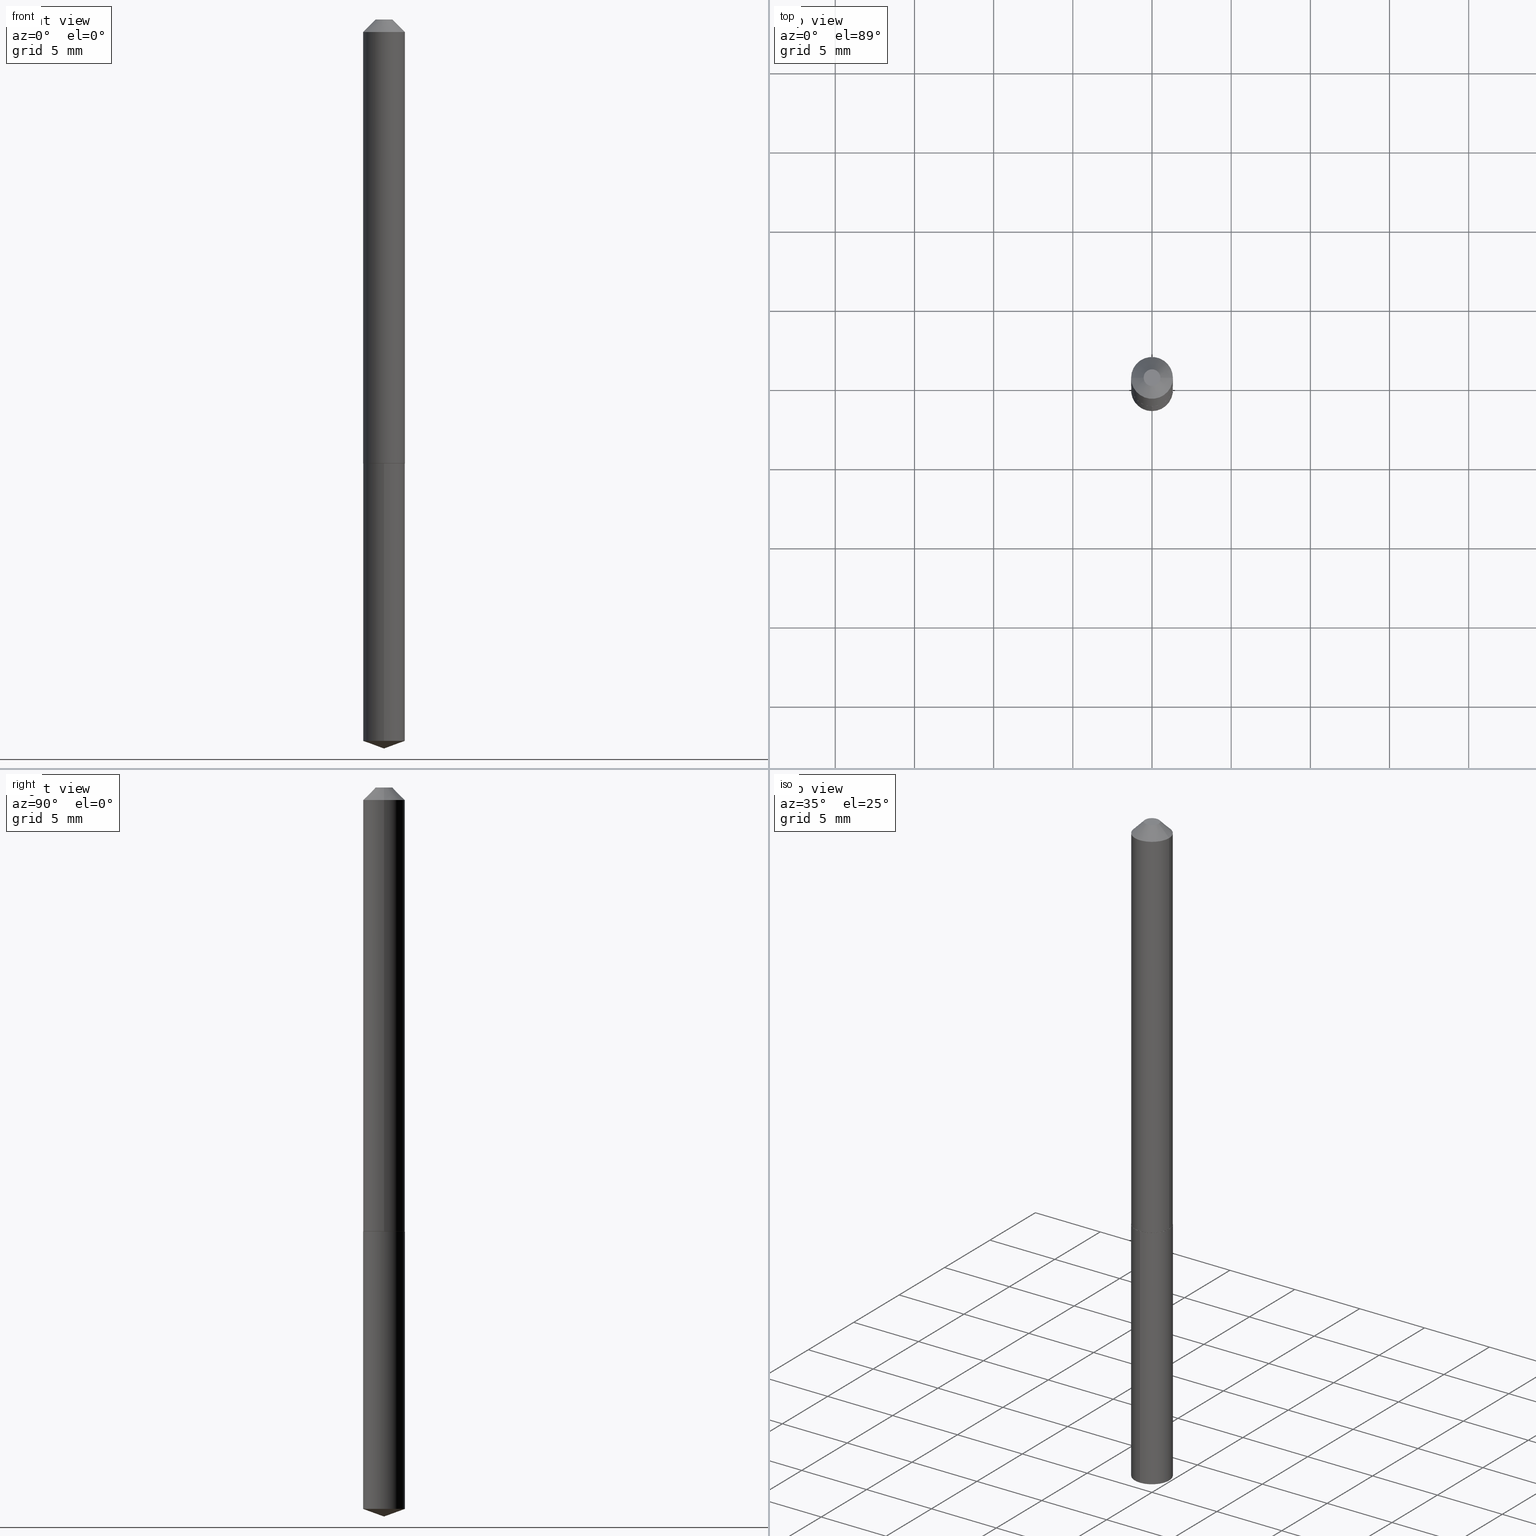
[diagram: canonical four-view strip — front | top / right | iso, engineering-drawing reading convention]
A machine part, canonical four-view strip (front | top / right | iso — engineering-drawing reading convention). The complete STEP part file that produces these views, byte-faithful:
ISO-10303-21;
HEADER;
FILE_DESCRIPTION (( 'STEP AP203' ),
    '1' );
FILE_NAME ('56037.STEP',
    '2024-04-22T19:56:04',
    ( '' ),
    ( '' ),
    'SwSTEP 2.0',
    'SolidWorks 2023',
    '' );
FILE_SCHEMA (( 'CONFIG_CONTROL_DESIGN' ));
ENDSEC;

DATA;
#1 = DIRECTION ( 'NONE',  ( -2.445468806185136597E-29, 3.491481338843145583E-15, 1.000000000000000000 ) ) ;
#2 = PERSON_AND_ORGANIZATION_ROLE ( 'design_supplier' ) ;
#3 = FACE_OUTER_BOUND ( 'NONE', #138, .T. ) ;
#4 = EDGE_CURVE ( 'NONE', #233, #365, #137, .T. ) ;
#5 = PERSON ( 'UNSPECIFIED', 'UNSPECIFIED', 'UNSPECIFIED', ('UNSPECIFIED'), ('UNSPECIFIED'), ('UNSPECIFIED') ) ;
#6 = VECTOR ( 'NONE', #167, 39.37007874015748143 ) ;
#7 = DIRECTION ( 'NONE',  ( -2.445468103057347126E-29, 3.491482345762159600E-15, 1.000000000000000000 ) ) ;
#8 = CC_DESIGN_PERSON_AND_ORGANIZATION_ASSIGNMENT ( #188, #31, ( #95 ) ) ;
#9 = DIRECTION ( 'NONE',  ( -6.982962677686266711E-15, -1.000000000000000000, 2.626776916984868919E-15 ) ) ;
#10 = ORIENTED_EDGE ( 'NONE', *, *, #355, .F. ) ;
#11 = CARTESIAN_POINT ( 'NONE',  ( -0.05150000000000005268, -3.486016661992269797E-15, -1.104000000000000092 ) ) ;
#12 = EDGE_LOOP ( 'NONE', ( #175, #101, #260, #310 ) ) ;
#13 = CARTESIAN_POINT ( 'NONE',  ( 2.699797562028391099E-29, -3.854595398082832919E-15, -1.104000000000000092 ) ) ;
#14 = VERTEX_POINT ( 'NONE', #379 ) ;
#15 = CARTESIAN_POINT ( 'NONE',  ( 7.642090019328603538E-31, -1.091087918388490390E-16, -0.03125000000000021511 ) ) ;
#16 = ORIENTED_EDGE ( 'NONE', *, *, #289, .T. ) ;
#17 = APPROVAL_STATUS ( 'not_yet_approved' ) ;
#18 = ORIENTED_EDGE ( 'NONE', *, *, #183, .T. ) ;
#19 =( LENGTH_UNIT ( ) NAMED_UNIT ( * ) SI_UNIT ( $, .METRE. ) );
#20 = AXIS2_PLACEMENT_3D ( 'NONE', #194, #339, #9 ) ;
#21 = DIRECTION ( 'NONE',  ( 1.000000000000000000, -6.982962677686269077E-15, 0.000000000000000000 ) ) ;
#22 = COORDINATED_UNIVERSAL_TIME_OFFSET ( 5, 0, .BEHIND. ) ;
#23 = APPROVAL_DATE_TIME ( #207, #247 ) ;
#24 = CARTESIAN_POINT ( 'NONE',  ( 0.000000000000000000, 0.000000000000000000, 0.000000000000000000 ) ) ;
#25 = EDGE_CURVE ( 'NONE', #111, #146, #186, .T. ) ;
#26 = AXIS2_PLACEMENT_3D ( 'NONE', #325, #238, #324 ) ;
#27 = DIRECTION ( 'NONE',  ( -0.7071067811865452413, 2.468850131082233000E-15, -0.7071067811865497932 ) ) ;
#28 = APPROVAL_STATUS ( 'not_yet_approved' ) ;
#29 = CARTESIAN_POINT ( 'NONE',  ( 4.386127677929786154E-29, -6.262229266394509783E-15, -1.793573547818158032 ) ) ;
#30 = CC_DESIGN_PERSON_AND_ORGANIZATION_ASSIGNMENT ( #92, #2, ( #95 ) ) ;
#31 = PERSON_AND_ORGANIZATION_ROLE ( 'creator' ) ;
#32 = DIRECTION ( 'NONE',  ( 2.438088387897960049E-29, -3.491481338843145188E-15, -1.000000000000000000 ) ) ;
#33 = EDGE_CURVE ( 'NONE', #372, #370, #158, .T. ) ;
#34 = FACE_OUTER_BOUND ( 'NONE', #180, .T. ) ;
#35 = DIRECTION ( 'NONE',  ( -2.445468103057347126E-29, 3.491482345762159600E-15, 1.000000000000000000 ) ) ;
#36 = ORIENTED_EDGE ( 'NONE', *, *, #83, .T. ) ;
#37 = AXIS2_PLACEMENT_3D ( 'NONE', #215, #32, #217 ) ;
#38 = PERSON_AND_ORGANIZATION_ROLE ( 'classification_officer' ) ;
#39 = DIRECTION ( 'NONE',  ( -2.445468806185136597E-29, 3.491481338843145583E-15, 1.000000000000000000 ) ) ;
#40 = ORIENTED_EDGE ( 'NONE', *, *, #85, .T. ) ;
#41 = APPLICATION_CONTEXT ( 'configuration controlled 3d designs of mechanical parts and assemblies' ) ;
#42 = DIRECTION ( 'NONE',  ( 1.000000000000000000, -6.982962677686266711E-15, 0.000000000000000000 ) ) ;
#43 = ORIENTED_EDGE ( 'NONE', *, *, #109, .F. ) ;
#44 = ADVANCED_FACE ( 'NONE', ( #265 ), #269, .T. ) ;
#45 = CARTESIAN_POINT ( 'NONE',  ( 3.743544432386673062E-48, -5.344789307371237567E-34, -1.530808498934197508E-19 ) ) ;
#46 = ORIENTED_EDGE ( 'NONE', *, *, #109, .T. ) ;
#47 = LOCAL_TIME ( 15, 56, 4.000000000000000000, #271 ) ;
#48 = DIRECTION ( 'NONE',  ( -2.438088387897960049E-29, 3.491481338843145188E-15, 1.000000000000000000 ) ) ;
#49 = ORIENTED_EDGE ( 'NONE', *, *, #33, .T. ) ;
#50 = ORIENTED_EDGE ( 'NONE', *, *, #25, .T. ) ;
#51 = VECTOR ( 'NONE', #206, 39.37007874015748143 ) ;
#52 = FACE_OUTER_BOUND ( 'NONE', #331, .T. ) ;
#53 = CIRCLE ( 'NONE', #374, 0.02074999999999999414 ) ;
#54 = AXIS2_PLACEMENT_3D ( 'NONE', #288, #371, #42 ) ;
#55 =( CONVERSION_BASED_UNIT ( 'INCH', #377 ) LENGTH_UNIT ( ) NAMED_UNIT ( #229 ) );
#56 = EDGE_CURVE ( 'NONE', #348, #370, #273, .T. ) ;
#57 =( NAMED_UNIT ( * ) SI_UNIT ( $, .STERADIAN. ) SOLID_ANGLE_UNIT ( ) );
#58 = AXIS2_PLACEMENT_3D ( 'NONE', #200, #72, #68 ) ;
#59 = UNCERTAINTY_MEASURE_WITH_UNIT (LENGTH_MEASURE( 1.000000000000000082E-05 ), #55, 'distance_accuracy_value', 'NONE');
#60 = VERTEX_POINT ( 'NONE', #343 ) ;
#61 = CALENDAR_DATE ( 2024, 22, 4 ) ;
#62 = CARTESIAN_POINT ( 'NONE',  ( 2.699797562028391099E-29, -3.854595398082833708E-15, -1.104000000000000092 ) ) ;
#63 = CARTESIAN_POINT ( 'NONE',  ( 4.386127677929786154E-29, -6.262229266394509783E-15, -1.793573547818158032 ) ) ;
#64 = DIRECTION ( 'NONE',  ( -2.445468806185136597E-29, 3.491481338843145583E-15, 1.000000000000000000 ) ) ;
#65 = DIRECTION ( 'NONE',  ( 6.676917655467980751E-15, 0.9396926207859114255, 0.3420201433256603307 ) ) ;
#66 = ORIENTED_EDGE ( 'NONE', *, *, #169, .T. ) ;
#67 = CIRCLE ( 'NONE', #294, 0.05200000000000012945 ) ;
#68 = DIRECTION ( 'NONE',  ( 1.000000000000000000, -6.982962677686269077E-15, 0.000000000000000000 ) ) ;
#69 = CARTESIAN_POINT ( 'NONE',  ( 4.432412502911247865E-29, -6.328309528416731475E-15, -1.812500000000000222 ) ) ;
#70 = ORIENTED_EDGE ( 'NONE', *, *, #212, .F. ) ;
#71 = MANIFOLD_SOLID_BREP ( 'Body-Move/Copy2[1]', #366 ) ;
#72 = DIRECTION ( 'NONE',  ( -2.445468806185136597E-29, 3.491481338843145583E-15, 1.000000000000000000 ) ) ;
#73 = ORIENTED_EDGE ( 'NONE', *, *, #341, .F. ) ;
#74 = EDGE_CURVE ( 'NONE', #134, #287, #259, .T. ) ;
#75 = CARTESIAN_POINT ( 'NONE',  ( 0.05200000000000012945, -4.215963716653098357E-15, -1.103500000000000147 ) ) ;
#76 = ORIENTED_EDGE ( 'NONE', *, *, #4, .F. ) ;
#77 = AXIS2_PLACEMENT_3D ( 'NONE', #151, #213, #21 ) ;
#78 = CC_DESIGN_APPROVAL ( #358, ( #95 ) ) ;
#79 = CARTESIAN_POINT ( 'NONE',  ( 3.694822225952789996E-16, 0.05199999999999613265, -1.104000000000000314 ) ) ;
#80 = EDGE_LOOP ( 'NONE', ( #106, #197, #43 ) ) ;
#81 = MANIFOLD_SOLID_BREP ( 'Body-Move/Copy2[2]', #122 ) ;
#82 = APPROVAL_ROLE ( '' ) ;
#83 = EDGE_CURVE ( 'NONE', #365, #233, #94, .T. ) ;
#84 = APPROVAL_STATUS ( 'not_yet_approved' ) ;
#85 = EDGE_CURVE ( 'NONE', #203, #60, #124, .T. ) ;
#86 = DIRECTION ( 'NONE',  ( 1.000000000000000000, -6.982962677686266711E-15, 4.876176775795935793E-29 ) ) ;
#87 = AXIS2_PLACEMENT_3D ( 'NONE', #29, #126, #157 ) ;
#88 = DIRECTION ( 'NONE',  ( 2.445468806185136597E-29, -3.491481338843145583E-15, -1.000000000000000000 ) ) ;
#89 = AXIS2_PLACEMENT_3D ( 'NONE', #306, #88, #276 ) ;
#90 = LOCAL_TIME ( 15, 56, 4.000000000000000000, #363 ) ;
#91 = EDGE_CURVE ( 'NONE', #372, #287, #224, .T. ) ;
#92 = PERSON_AND_ORGANIZATION ( #5, #191 ) ;
#93 = PLANE ( 'NONE',  #37 ) ;
#94 = CIRCLE ( 'NONE', #351, 0.05150000000000005268 ) ;
#95 = PRODUCT_DEFINITION_FORMATION_WITH_SPECIFIED_SOURCE ( 'ANY', '', #386, .NOT_KNOWN. ) ;
#96 = EDGE_CURVE ( 'NONE', #111, #203, #53, .T. ) ;
#97 = FACE_OUTER_BOUND ( 'NONE', #144, .T. ) ;
#98 = EDGE_LOOP ( 'NONE', ( #36, #66, #141, #312 ) ) ;
#99 = SECURITY_CLASSIFICATION_LEVEL ( 'unclassified' ) ;
#100 = CARTESIAN_POINT ( 'NONE',  ( 2.699797562028391099E-29, -3.854595398082833708E-15, -1.104000000000000092 ) ) ;
#101 = ORIENTED_EDGE ( 'NONE', *, *, #382, .T. ) ;
#102 = AXIS2_PLACEMENT_3D ( 'NONE', #165, #364, #142 ) ;
#103 = CIRCLE ( 'NONE', #323, 0.05200000000000000455 ) ;
#104 = CARTESIAN_POINT ( 'NONE',  ( 3.694822225952959601E-16, 0.05199999999999374567, -1.793573547818158254 ) ) ;
#105 = CC_DESIGN_PERSON_AND_ORGANIZATION_ASSIGNMENT ( #380, #349, ( #143 ) ) ;
#106 = ORIENTED_EDGE ( 'NONE', *, *, #74, .F. ) ;
#107 = DIRECTION ( 'NONE',  ( -2.445468806185136877E-29, 3.491481338843145188E-15, 1.000000000000000000 ) ) ;
#108 = ORIENTED_EDGE ( 'NONE', *, *, #83, .F. ) ;
#109 = EDGE_CURVE ( 'NONE', #287, #372, #261, .T. ) ;
#110 = CARTESIAN_POINT ( 'NONE',  ( 3.694822225952959601E-16, 0.05199999999999613265, -1.104000000000000314 ) ) ;
#111 = VERTEX_POINT ( 'NONE', #161 ) ;
#112 = VECTOR ( 'NONE', #244, 39.37007874015748143 ) ;
#113 = CALENDAR_DATE ( 2024, 22, 4 ) ;
#114 = ORIENTED_EDGE ( 'NONE', *, *, #56, .F. ) ;
#115 = DIRECTION ( 'NONE',  ( 1.000000000000000000, -6.982962677686266711E-15, 0.000000000000000000 ) ) ;
#116 = DIRECTION ( 'NONE',  ( -2.445468103057347126E-29, 3.491482345762159600E-15, 1.000000000000000000 ) ) ;
#117 = ADVANCED_FACE ( 'NONE', ( #3 ), #347, .T. ) ;
#118 = CALENDAR_DATE ( 2024, 22, 4 ) ;
#119 = DATE_TIME_ROLE ( 'creation_date' ) ;
#120 = DATE_AND_TIME ( #118, #162 ) ;
#121 = CARTESIAN_POINT ( 'NONE',  ( -3.631140592396587893E-16, -0.05200000000000384870, -1.104000000000000092 ) ) ;
#122 = CLOSED_SHELL ( 'NONE', ( #277, #385, #303, #239, #245, #378, #117, #163 ) ) ;
#123 = CARTESIAN_POINT ( 'NONE',  ( 3.743544432386673062E-48, -5.344789307371237567E-34, -1.530808498934197508E-19 ) ) ;
#124 = LINE ( 'NONE', #304, #112 ) ;
#125 = CARTESIAN_POINT ( 'NONE',  ( 2.699797562028391099E-29, -3.854595398082833708E-15, -1.104000000000000092 ) ) ;
#126 = DIRECTION ( 'NONE',  ( -2.445468103057347126E-29, 3.491482345762159600E-15, 1.000000000000000000 ) ) ;
#127 = EDGE_CURVE ( 'NONE', #134, #372, #243, .T. ) ;
#128 = LINE ( 'NONE', #359, #387 ) ;
#129 = AXIS2_PLACEMENT_3D ( 'NONE', #125, #35, #140 ) ;
#130 = AXIS2_PLACEMENT_3D ( 'NONE', #45, #361, #193 ) ;
#131 = DIRECTION ( 'NONE',  ( -6.982962677686267499E-15, -1.000000000000000000, 3.475157955500671305E-15 ) ) ;
#132 = CYLINDRICAL_SURFACE ( 'NONE', #237, 0.05199999999999999067 ) ;
#133 = CARTESIAN_POINT ( 'NONE',  ( 2.699797562028391099E-29, -3.854595398082832919E-15, -1.104000000000000092 ) ) ;
#134 = VERTEX_POINT ( 'NONE', #334 ) ;
#135 = APPROVAL ( #28, 'UNSPECIFIED' ) ;
#136 = LINE ( 'NONE', #285, #356 ) ;
#137 = CIRCLE ( 'NONE', #77, 0.05150000000000005268 ) ;
#138 = EDGE_LOOP ( 'NONE', ( #340, #290, #50, #280 ) ) ;
#139 = LINE ( 'NONE', #256, #275 ) ;
#140 = DIRECTION ( 'NONE',  ( -6.982962677686266711E-15, -1.000000000000000000, 2.626776916984868919E-15 ) ) ;
#141 = ORIENTED_EDGE ( 'NONE', *, *, #289, .F. ) ;
#142 = DIRECTION ( 'NONE',  ( -1.000000000000000000, 6.982962677686266711E-15, 0.000000000000000000 ) ) ;
#143 = PRODUCT_DEFINITION ( 'UNKNOWN', '', #95, #218 ) ;
#144 = EDGE_LOOP ( 'NONE', ( #344, #231, #250, #228 ) ) ;
#145 = PERSON_AND_ORGANIZATION ( #5, #191 ) ;
#146 = VERTEX_POINT ( 'NONE', #389 ) ;
#147 = APPROVAL_PERSON_ORGANIZATION ( #295, #135, #268 ) ;
#148 = APPLICATION_CONTEXT ( 'configuration controlled 3d designs of mechanical parts and assemblies' ) ;
#149 = DIRECTION ( 'NONE',  ( 1.000000000000000000, 0.000000000000000000, 0.000000000000000000 ) ) ;
#150 = APPLICATION_PROTOCOL_DEFINITION ( 'international standard', 'config_control_design', 1994, #41 ) ;
#151 = CARTESIAN_POINT ( 'NONE',  ( 2.699797562028391099E-29, -3.854595398082832919E-15, -1.104000000000000092 ) ) ;
#152 = PERSON_AND_ORGANIZATION ( #5, #191 ) ;
#153 = CC_DESIGN_APPROVAL ( #247, ( #143 ) ) ;
#154 = CC_DESIGN_APPROVAL ( #135, ( #383 ) ) ;
#155 = CALENDAR_DATE ( 2024, 22, 4 ) ;
#156 = COORDINATED_UNIVERSAL_TIME_OFFSET ( 5, 0, .BEHIND. ) ;
#157 = DIRECTION ( 'NONE',  ( -6.982962677686266711E-15, -1.000000000000000000, 5.253553833969737838E-15 ) ) ;
#158 = LINE ( 'NONE', #121, #51 ) ;
#159 = DIRECTION ( 'NONE',  ( -6.982962677686266711E-15, -1.000000000000000000, 5.253553833969737838E-15 ) ) ;
#160 = VECTOR ( 'NONE', #321, 39.37007874015748143 ) ;
#161 = CARTESIAN_POINT ( 'NONE',  ( -0.02074999999999999414, 1.994508714814133894E-16, -1.530808498946235774E-19 ) ) ;
#162 = LOCAL_TIME ( 15, 56, 4.000000000000000000, #22 ) ;
#163 = ADVANCED_FACE ( 'NONE', ( #357 ), #93, .F. ) ;
#164 = CARTESIAN_POINT ( 'NONE',  ( 4.432410936791441595E-29, -6.328311751693914866E-15, -1.812500000000000222 ) ) ;
#165 = CARTESIAN_POINT ( 'NONE',  ( 7.642090019328603538E-31, -1.091087918388490390E-16, -0.03125000000000021511 ) ) ;
#166 = AXIS2_PLACEMENT_3D ( 'NONE', #63, #330, #159 ) ;
#167 = DIRECTION ( 'NONE',  ( 0.7071067811866742492, -2.468850131083584319E-15, 0.7071067811864207853 ) ) ;
#168 = EDGE_LOOP ( 'NONE', ( #205, #201 ) ) ;
#169 = EDGE_CURVE ( 'NONE', #233, #14, #128, .T. ) ;
#170 = CARTESIAN_POINT ( 'NONE',  ( 2.698574827625298297E-29, -3.852849657413411415E-15, -1.103500000000000147 ) ) ;
#171 = ORIENTED_EDGE ( 'NONE', *, *, #352, .F. ) ;
#172 = EDGE_CURVE ( 'NONE', #370, #348, #328, .T. ) ;
#173 = CARTESIAN_POINT ( 'NONE',  ( 2.699797562028391099E-29, -3.854595398082833708E-15, -1.104000000000000092 ) ) ;
#174 = AXIS2_PLACEMENT_3D ( 'NONE', #181, #116, #329 ) ;
#175 = ORIENTED_EDGE ( 'NONE', *, *, #91, .T. ) ;
#176 = APPROVAL_PERSON_ORGANIZATION ( #145, #247, #373 ) ;
#177 = LINE ( 'NONE', #75, #6 ) ;
#178 = CC_DESIGN_PERSON_AND_ORGANIZATION_ASSIGNMENT ( #152, #236, ( #386 ) ) ;
#179 = EDGE_LOOP ( 'NONE', ( #70, #18, #257, #73 ) ) ;
#180 = EDGE_LOOP ( 'NONE', ( #284, #40, #255, #368 ) ) ;
#181 = CARTESIAN_POINT ( 'NONE',  ( -9.184586006086678132E-28, 1.311316242324706476E-13, 37.55757874015748143 ) ) ;
#182 =( NAMED_UNIT ( * ) PLANE_ANGLE_UNIT ( ) SI_UNIT ( $, .RADIAN. ) );
#183 = EDGE_CURVE ( 'NONE', #14, #319, #263, .T. ) ;
#184 = CYLINDRICAL_SURFACE ( 'NONE', #26, 0.05200000000000006700 ) ;
#185 = APPLICATION_PROTOCOL_DEFINITION ( 'international standard', 'config_control_design', 1994, #148 ) ;
#186 = LINE ( 'NONE', #327, #298 ) ;
#187 = CC_DESIGN_DATE_AND_TIME_ASSIGNMENT ( #384, #119, ( #143 ) ) ;
#188 = PERSON_AND_ORGANIZATION ( #5, #191 ) ;
#189 = ORIENTED_EDGE ( 'NONE', *, *, #127, .F. ) ;
#190 = EDGE_CURVE ( 'NONE', #203, #111, #375, .T. ) ;
#191 = ORGANIZATION ( 'UNSPECIFIED', 'UNSPECIFIED', '' ) ;
#192 = DIRECTION ( 'NONE',  ( -2.445468103057347126E-29, 3.491482345762159600E-15, 1.000000000000000000 ) ) ;
#193 = DIRECTION ( 'NONE',  ( 1.000000000000000000, -6.982962677686265922E-15, 4.876174938203531473E-29 ) ) ;
#194 = CARTESIAN_POINT ( 'NONE',  ( 2.699797562028391099E-29, -3.854595398082833708E-15, -1.104000000000000092 ) ) ;
#195 = DIRECTION ( 'NONE',  ( 1.000000000000000000, -6.982962677686269077E-15, 0.000000000000000000 ) ) ;
#196 = AXIS2_PLACEMENT_3D ( 'NONE', #62, #192, #219 ) ;
#197 = ORIENTED_EDGE ( 'NONE', *, *, #127, .T. ) ;
#198 = DIRECTION ( 'NONE',  ( 6.982962677686265922E-15, 1.000000000000000000, -3.491482345762159600E-15 ) ) ;
#199 = EDGE_LOOP ( 'NONE', ( #282, #46, #49, #114 ) ) ;
#200 = CARTESIAN_POINT ( 'NONE',  ( 2.698574827625298297E-29, -3.852849657413411415E-15, -1.103500000000000147 ) ) ;
#201 = ORIENTED_EDGE ( 'NONE', *, *, #190, .T. ) ;
#202 = FACE_OUTER_BOUND ( 'NONE', #320, .T. ) ;
#203 = VERTEX_POINT ( 'NONE', #307 ) ;
#204 = AXIS2_PLACEMENT_3D ( 'NONE', #170, #39, #258 ) ;
#205 = ORIENTED_EDGE ( 'NONE', *, *, #96, .T. ) ;
#206 = DIRECTION ( 'NONE',  ( -2.445468103057346845E-29, 3.491482345762159600E-15, 1.000000000000000000 ) ) ;
#207 = DATE_AND_TIME ( #296, #381 ) ;
#208 = CC_DESIGN_DATE_AND_TIME_ASSIGNMENT ( #302, #209, ( #383 ) ) ;
#209 = DATE_TIME_ROLE ( 'classification_date' ) ;
#210 = AXIS2_PLACEMENT_3D ( 'NONE', #266, #293, #86 ) ;
#211 = FACE_OUTER_BOUND ( 'NONE', #179, .T. ) ;
#212 = EDGE_CURVE ( 'NONE', #14, #146, #136, .T. ) ;
#213 = DIRECTION ( 'NONE',  ( -2.445468806185136597E-29, 3.491481338843145583E-15, 1.000000000000000000 ) ) ;
#214 = AXIS2_PLACEMENT_3D ( 'NONE', #173, #316, #198 ) ;
#215 = CARTESIAN_POINT ( 'NONE',  ( 1.871772216193336531E-48, -2.672394653685618784E-34, -7.654042494670987541E-20 ) ) ;
#216 = CONICAL_SURFACE ( 'NONE', #278, 108.1684023407349855, 1.221730476396036158 ) ;
#217 = DIRECTION ( 'NONE',  ( -1.000000000000000000, 6.982962677686265922E-15, -4.876176775795935793E-29 ) ) ;
#218 = DESIGN_CONTEXT ( 'detailed design', #41, 'design' ) ;
#219 = DIRECTION ( 'NONE',  ( -6.982962677686266711E-15, -1.000000000000000000, 2.626776916984868919E-15 ) ) ;
#220 = ADVANCED_FACE ( 'NONE', ( #335 ), #230, .T. ) ;
#221 = DIRECTION ( 'NONE',  ( -2.445468103057347126E-29, 3.491482345762159600E-15, 1.000000000000000000 ) ) ;
#222 = DIRECTION ( 'NONE',  ( -2.445468806185136597E-29, 3.491481338843145583E-15, 1.000000000000000000 ) ) ;
#223 = CARTESIAN_POINT ( 'NONE',  ( 2.698574827625298297E-29, -3.852849657413411415E-15, -1.103500000000000147 ) ) ;
#224 = CIRCLE ( 'NONE', #166, 0.05199999999999999067 ) ;
#225 = AXIS2_PLACEMENT_3D ( 'NONE', #13, #48, #342 ) ;
#226 = ORIENTED_EDGE ( 'NONE', *, *, #74, .T. ) ;
#227 = CARTESIAN_POINT ( 'NONE',  ( 2.698574827625298297E-29, -3.852849657413411415E-15, -1.103500000000000147 ) ) ;
#228 = ORIENTED_EDGE ( 'NONE', *, *, #183, .F. ) ;
#229 = DIMENSIONAL_EXPONENTS ( 1.000000000000000000, 0.000000000000000000, 0.000000000000000000, 0.000000000000000000, 0.000000000000000000, 0.000000000000000000, 0.000000000000000000 ) ;
#230 = CYLINDRICAL_SURFACE ( 'NONE', #20, 0.05199999999999999067 ) ;
#231 = ORIENTED_EDGE ( 'NONE', *, *, #4, .T. ) ;
#232 = DIRECTION ( 'NONE',  ( -2.445468806185136597E-29, 3.491481338843145583E-15, 1.000000000000000000 ) ) ;
#233 = VERTEX_POINT ( 'NONE', #11 ) ;
#234 = CARTESIAN_POINT ( 'NONE',  ( 0.05150000000000005268, -4.214217975983676065E-15, -1.104000000000000092 ) ) ;
#235 = LINE ( 'NONE', #79, #160 ) ;
#236 = PERSON_AND_ORGANIZATION_ROLE ( 'design_owner' ) ;
#237 = AXIS2_PLACEMENT_3D ( 'NONE', #100, #221, #249 ) ;
#238 = DIRECTION ( 'NONE',  ( -2.445468806185136597E-29, 3.491481338843145583E-15, 1.000000000000000000 ) ) ;
#239 = ADVANCED_FACE ( 'NONE', ( #281 ), #309, .F. ) ;
#240 = CARTESIAN_POINT ( 'NONE',  ( -3.631140592396587893E-16, -0.05200000000000384870, -1.104000000000000092 ) ) ;
#241 = APPROVAL_DATE_TIME ( #120, #135 ) ;
#242 = VECTOR ( 'NONE', #301, 39.37007874015748854 ) ;
#243 = LINE ( 'NONE', #164, #242 ) ;
#244 = DIRECTION ( 'NONE',  ( 0.7071067811865452413, -7.319954787623248157E-15, -0.7071067811865497932 ) ) ;
#245 = ADVANCED_FACE ( 'NONE', ( #97 ), #299, .T. ) ;
#246 = PERSON_AND_ORGANIZATION ( #5, #191 ) ;
#247 = APPROVAL ( #84, 'UNSPECIFIED' ) ;
#248 = PLANE ( 'NONE',  #214 ) ;
#249 = DIRECTION ( 'NONE',  ( -6.982962677686266711E-15, -1.000000000000000000, 2.626776916984868919E-15 ) ) ;
#250 = ORIENTED_EDGE ( 'NONE', *, *, #253, .T. ) ;
#251 = ADVANCED_BREP_SHAPE_REPRESENTATION ( '56037', ( #71, #81, #353 ), #286 ) ;
#252 = DIRECTION ( 'NONE',  ( -2.445468806185136597E-29, 3.491481338843145583E-15, 1.000000000000000000 ) ) ;
#253 = EDGE_CURVE ( 'NONE', #365, #319, #177, .T. ) ;
#254 = CONICAL_SURFACE ( 'NONE', #102, 0.05200000000000000455, 0.7853981633974450594 ) ;
#255 = ORIENTED_EDGE ( 'NONE', *, *, #355, .T. ) ;
#256 = CARTESIAN_POINT ( 'NONE',  ( 0.05200000000000006700, -3.631140592396863502E-16, 2.535611923413889961E-30 ) ) ;
#257 = ORIENTED_EDGE ( 'NONE', *, *, #352, .T. ) ;
#258 = DIRECTION ( 'NONE',  ( 1.000000000000000000, -6.982962677686269077E-15, 0.000000000000000000 ) ) ;
#259 = LINE ( 'NONE', #69, #346 ) ;
#260 = ORIENTED_EDGE ( 'NONE', *, *, #172, .F. ) ;
#261 = CIRCLE ( 'NONE', #87, 0.05199999999999999067 ) ;
#262 = ORIENTED_EDGE ( 'NONE', *, *, #56, .T. ) ;
#263 = CIRCLE ( 'NONE', #308, 0.05200000000000012945 ) ;
#264 = MECHANICAL_CONTEXT ( 'NONE', #148, 'mechanical' ) ;
#265 = FACE_OUTER_BOUND ( 'NONE', #362, .T. ) ;
#266 = CARTESIAN_POINT ( 'NONE',  ( 0.000000000000000000, 0.000000000000000000, 0.000000000000000000 ) ) ;
#267 = SHAPE_DEFINITION_REPRESENTATION ( #390, #251 ) ;
#268 = APPROVAL_ROLE ( '' ) ;
#269 = CONICAL_SURFACE ( 'NONE', #174, 108.1684023407349855, 1.221730476396036158 ) ;
#270 = CONICAL_SURFACE ( 'NONE', #58, 0.05200000000000012945, 0.7853981633976275800 ) ;
#271 = COORDINATED_UNIVERSAL_TIME_OFFSET ( 5, 0, .BEHIND. ) ;
#272 = DATE_AND_TIME ( #61, #360 ) ;
#273 = CIRCLE ( 'NONE', #129, 0.05199999999999999067 ) ;
#274 = ADVANCED_FACE ( 'NONE', ( #367 ), #132, .T. ) ;
#275 = VECTOR ( 'NONE', #369, 39.37007874015748143 ) ;
#276 = DIRECTION ( 'NONE',  ( -1.000000000000000000, 6.982962677686266711E-15, 0.000000000000000000 ) ) ;
#277 = ADVANCED_FACE ( 'NONE', ( #34 ), #254, .T. ) ;
#278 = AXIS2_PLACEMENT_3D ( 'NONE', #314, #7, #131 ) ;
#279 = FACE_OUTER_BOUND ( 'NONE', #80, .T. ) ;
#280 = ORIENTED_EDGE ( 'NONE', *, *, #341, .T. ) ;
#281 = FACE_OUTER_BOUND ( 'NONE', #292, .T. ) ;
#282 = ORIENTED_EDGE ( 'NONE', *, *, #382, .F. ) ;
#283 = DIRECTION ( 'NONE',  ( 1.000000000000000000, -6.982962677686269077E-15, 0.000000000000000000 ) ) ;
#284 = ORIENTED_EDGE ( 'NONE', *, *, #190, .F. ) ;
#285 = CARTESIAN_POINT ( 'NONE',  ( -0.05200000000000006700, 3.694822225952525727E-16, -2.557846246932554274E-30 ) ) ;
#286 =( GEOMETRIC_REPRESENTATION_CONTEXT ( 3 ) GLOBAL_UNCERTAINTY_ASSIGNED_CONTEXT ( ( #59 ) ) GLOBAL_UNIT_ASSIGNED_CONTEXT ( ( #55, #182, #57 ) ) REPRESENTATION_CONTEXT ( 'NONE', 'WORKASPACE' ) );
#287 = VERTEX_POINT ( 'NONE', #104 ) ;
#288 = CARTESIAN_POINT ( 'NONE',  ( 7.642090019328603538E-31, -1.091087918388490390E-16, -0.03125000000000021511 ) ) ;
#289 = EDGE_CURVE ( 'NONE', #319, #14, #67, .T. ) ;
#290 = ORIENTED_EDGE ( 'NONE', *, *, #96, .F. ) ;
#291 = PERSON_AND_ORGANIZATION ( #5, #191 ) ;
#292 = EDGE_LOOP ( 'NONE', ( #108, #76 ) ) ;
#293 = DIRECTION ( 'NONE',  ( -2.445468806185136597E-29, 3.491481338843145583E-15, 1.000000000000000000 ) ) ;
#294 = AXIS2_PLACEMENT_3D ( 'NONE', #223, #252, #283 ) ;
#295 = PERSON_AND_ORGANIZATION ( #5, #191 ) ;
#296 = CALENDAR_DATE ( 2024, 22, 4 ) ;
#297 = DIRECTION ( 'NONE',  ( 0.000000000000000000, 0.000000000000000000, 1.000000000000000000 ) ) ;
#298 = VECTOR ( 'NONE', #27, 39.37007874015748143 ) ;
#299 = CONICAL_SURFACE ( 'NONE', #204, 0.05200000000000012945, 0.7853981633976275800 ) ;
#300 = DIRECTION ( 'NONE',  ( 1.000000000000000000, -6.982962677686265922E-15, 4.876174938203531473E-29 ) ) ;
#301 = DIRECTION ( 'NONE',  ( -6.561838499445213473E-15, -0.9396926207859090940, 0.3420201433256668810 ) ) ;
#302 = DATE_AND_TIME ( #155, #90 ) ;
#303 = ADVANCED_FACE ( 'NONE', ( #336 ), #270, .T. ) ;
#304 = CARTESIAN_POINT ( 'NONE',  ( 0.05200000000000000455, -4.658546877229686859E-16, -0.03125000000000021511 ) ) ;
#305 = ADVANCED_FACE ( 'NONE', ( #279 ), #216, .T. ) ;
#306 = CARTESIAN_POINT ( 'NONE',  ( 7.642090019328603538E-31, -1.091087918388490390E-16, -0.03125000000000021511 ) ) ;
#307 = CARTESIAN_POINT ( 'NONE',  ( 0.02074999999999999414, -3.041050105883639549E-16, -1.530808498918505513E-19 ) ) ;
#308 = AXIS2_PLACEMENT_3D ( 'NONE', #227, #64, #345 ) ;
#309 = PLANE ( 'NONE',  #225 ) ;
#310 = ORIENTED_EDGE ( 'NONE', *, *, #33, .F. ) ;
#311 = CARTESIAN_POINT ( 'NONE',  ( 0.05200000000000012945, -4.215963716653098357E-15, -1.103500000000000147 ) ) ;
#312 = ORIENTED_EDGE ( 'NONE', *, *, #253, .F. ) ;
#313 = PRODUCT_RELATED_PRODUCT_CATEGORY ( 'detail', '', ( #386 ) ) ;
#314 = CARTESIAN_POINT ( 'NONE',  ( -9.184586006086678132E-28, 1.311316242324706476E-13, 37.55757874015748143 ) ) ;
#315 = ORIENTED_EDGE ( 'NONE', *, *, #91, .F. ) ;
#316 = DIRECTION ( 'NONE',  ( 2.445468103057346845E-29, -3.491482345762159600E-15, -1.000000000000000000 ) ) ;
#317 = APPROVAL_PERSON_ORGANIZATION ( #291, #358, #82 ) ;
#318 = CC_DESIGN_SECURITY_CLASSIFICATION ( #383, ( #95 ) ) ;
#319 = VERTEX_POINT ( 'NONE', #311 ) ;
#320 = EDGE_LOOP ( 'NONE', ( #376, #262 ) ) ;
#321 = DIRECTION ( 'NONE',  ( -2.445468103057346845E-29, 3.491482345762159600E-15, 1.000000000000000000 ) ) ;
#322 = CARTESIAN_POINT ( 'NONE',  ( -3.631140592396419767E-16, -0.05200000000000627731, -1.793573547818157587 ) ) ;
#323 = AXIS2_PLACEMENT_3D ( 'NONE', #15, #232, #115 ) ;
#324 = DIRECTION ( 'NONE',  ( 1.000000000000000000, -6.982962677686266711E-15, 4.876176775795935793E-29 ) ) ;
#325 = CARTESIAN_POINT ( 'NONE',  ( 0.000000000000000000, 0.000000000000000000, 0.000000000000000000 ) ) ;
#326 = ADVANCED_FACE ( 'NONE', ( #202 ), #248, .F. ) ;
#327 = CARTESIAN_POINT ( 'NONE',  ( -0.05200000000000000455, 2.540052674008368551E-16, -0.03125000000000021511 ) ) ;
#328 = CIRCLE ( 'NONE', #196, 0.05199999999999999067 ) ;
#329 = DIRECTION ( 'NONE',  ( -6.982962677686267499E-15, -1.000000000000000000, 3.475157955500671305E-15 ) ) ;
#330 = DIRECTION ( 'NONE',  ( -2.445468103057347126E-29, 3.491482345762159600E-15, 1.000000000000000000 ) ) ;
#331 = EDGE_LOOP ( 'NONE', ( #16, #338, #10, #171 ) ) ;
#332 = CIRCLE ( 'NONE', #54, 0.05200000000000000455 ) ;
#333 = DIRECTION ( 'NONE',  ( -0.7071067811866742492, 7.493145998870811699E-15, 0.7071067811864207853 ) ) ;
#334 = CARTESIAN_POINT ( 'NONE',  ( 4.432410936791442156E-29, -6.328311751693914866E-15, -1.812500000000000222 ) ) ;
#335 = FACE_OUTER_BOUND ( 'NONE', #12, .T. ) ;
#336 = FACE_OUTER_BOUND ( 'NONE', #98, .T. ) ;
#337 = CC_DESIGN_PERSON_AND_ORGANIZATION_ASSIGNMENT ( #246, #38, ( #383 ) ) ;
#338 = ORIENTED_EDGE ( 'NONE', *, *, #212, .T. ) ;
#339 = DIRECTION ( 'NONE',  ( -2.445468103057347126E-29, 3.491482345762159600E-15, 1.000000000000000000 ) ) ;
#340 = ORIENTED_EDGE ( 'NONE', *, *, #85, .F. ) ;
#341 = EDGE_CURVE ( 'NONE', #146, #60, #332, .T. ) ;
#342 = DIRECTION ( 'NONE',  ( 1.000000000000000000, -6.982962677686265922E-15, 4.876176775795935793E-29 ) ) ;
#343 = CARTESIAN_POINT ( 'NONE',  ( 0.05200000000000000455, -4.722228510785349578E-16, -0.03125000000000021511 ) ) ;
#344 = ORIENTED_EDGE ( 'NONE', *, *, #169, .F. ) ;
#345 = DIRECTION ( 'NONE',  ( 1.000000000000000000, -6.982962677686269077E-15, 0.000000000000000000 ) ) ;
#346 = VECTOR ( 'NONE', #65, 39.37007874015748143 ) ;
#347 = CONICAL_SURFACE ( 'NONE', #89, 0.05200000000000000455, 0.7853981633974450594 ) ;
#348 = VERTEX_POINT ( 'NONE', #110 ) ;
#349 = PERSON_AND_ORGANIZATION_ROLE ( 'creator' ) ;
#350 = COORDINATED_UNIVERSAL_TIME_OFFSET ( 5, 0, .BEHIND. ) ;
#351 = AXIS2_PLACEMENT_3D ( 'NONE', #133, #222, #195 ) ;
#352 = EDGE_CURVE ( 'NONE', #319, #60, #139, .T. ) ;
#353 = AXIS2_PLACEMENT_3D ( 'NONE', #24, #297, #149 ) ;
#354 = CYLINDRICAL_SURFACE ( 'NONE', #210, 0.05200000000000006700 ) ;
#355 = EDGE_CURVE ( 'NONE', #60, #146, #103, .T. ) ;
#356 = VECTOR ( 'NONE', #107, 39.37007874015748143 ) ;
#357 = FACE_OUTER_BOUND ( 'NONE', #168, .T. ) ;
#358 = APPROVAL ( #17, 'UNSPECIFIED' ) ;
#359 = CARTESIAN_POINT ( 'NONE',  ( -0.05200000000000012945, -3.483367434818158202E-15, -1.103500000000000147 ) ) ;
#360 = LOCAL_TIME ( 15, 56, 4.000000000000000000, #156 ) ;
#361 = DIRECTION ( 'NONE',  ( -2.445468806185136597E-29, 3.491481338843145583E-15, 1.000000000000000000 ) ) ;
#362 = EDGE_LOOP ( 'NONE', ( #189, #226, #315 ) ) ;
#363 = COORDINATED_UNIVERSAL_TIME_OFFSET ( 5, 0, .BEHIND. ) ;
#364 = DIRECTION ( 'NONE',  ( 2.445468806185136597E-29, -3.491481338843145583E-15, -1.000000000000000000 ) ) ;
#365 = VERTEX_POINT ( 'NONE', #234 ) ;
#366 = CLOSED_SHELL ( 'NONE', ( #220, #44, #305, #274, #326 ) ) ;
#367 = FACE_OUTER_BOUND ( 'NONE', #199, .T. ) ;
#368 = ORIENTED_EDGE ( 'NONE', *, *, #25, .F. ) ;
#369 = DIRECTION ( 'NONE',  ( -2.445468806185136877E-29, 3.491481338843145188E-15, 1.000000000000000000 ) ) ;
#370 = VERTEX_POINT ( 'NONE', #240 ) ;
#371 = DIRECTION ( 'NONE',  ( -2.445468806185136597E-29, 3.491481338843145583E-15, 1.000000000000000000 ) ) ;
#372 = VERTEX_POINT ( 'NONE', #322 ) ;
#373 = APPROVAL_ROLE ( '' ) ;
#374 = AXIS2_PLACEMENT_3D ( 'NONE', #123, #1, #300 ) ;
#375 = CIRCLE ( 'NONE', #130, 0.02074999999999999414 ) ;
#376 = ORIENTED_EDGE ( 'NONE', *, *, #172, .T. ) ;
#377 = LENGTH_MEASURE_WITH_UNIT ( LENGTH_MEASURE( 0.02539999999999999897 ), #19 );
#378 = ADVANCED_FACE ( 'NONE', ( #211 ), #184, .T. ) ;
#379 = CARTESIAN_POINT ( 'NONE',  ( -0.05200000000000012945, -3.483367434818158202E-15, -1.103500000000000147 ) ) ;
#380 = PERSON_AND_ORGANIZATION ( #5, #191 ) ;
#381 = LOCAL_TIME ( 15, 56, 4.000000000000000000, #350 ) ;
#382 = EDGE_CURVE ( 'NONE', #287, #348, #235, .T. ) ;
#383 = SECURITY_CLASSIFICATION ( '', '', #99 ) ;
#384 = DATE_AND_TIME ( #113, #47 ) ;
#385 = ADVANCED_FACE ( 'NONE', ( #52 ), #354, .T. ) ;
#386 = PRODUCT ( '56037', '56037', '', ( #264 ) ) ;
#387 = VECTOR ( 'NONE', #333, 39.37007874015748143 ) ;
#388 = APPROVAL_DATE_TIME ( #272, #358 ) ;
#389 = CARTESIAN_POINT ( 'NONE',  ( -0.05200000000000000455, -1.611497002030876847E-15, -0.03125000000000021511 ) ) ;
#390 = PRODUCT_DEFINITION_SHAPE ( 'NONE', 'NONE',  #143 ) ;
ENDSEC;
END-ISO-10303-21;
